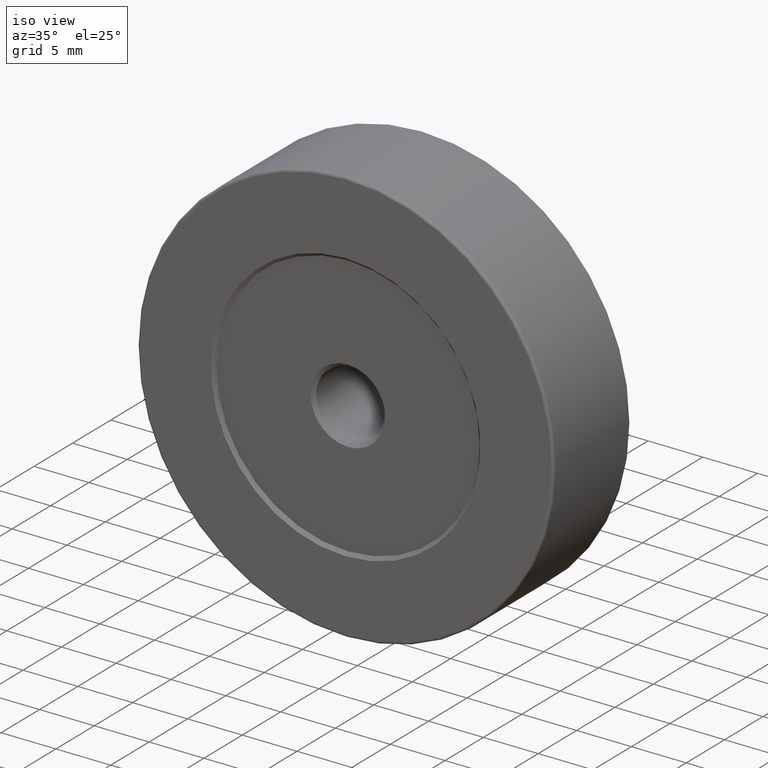
[diagram: clean part render]
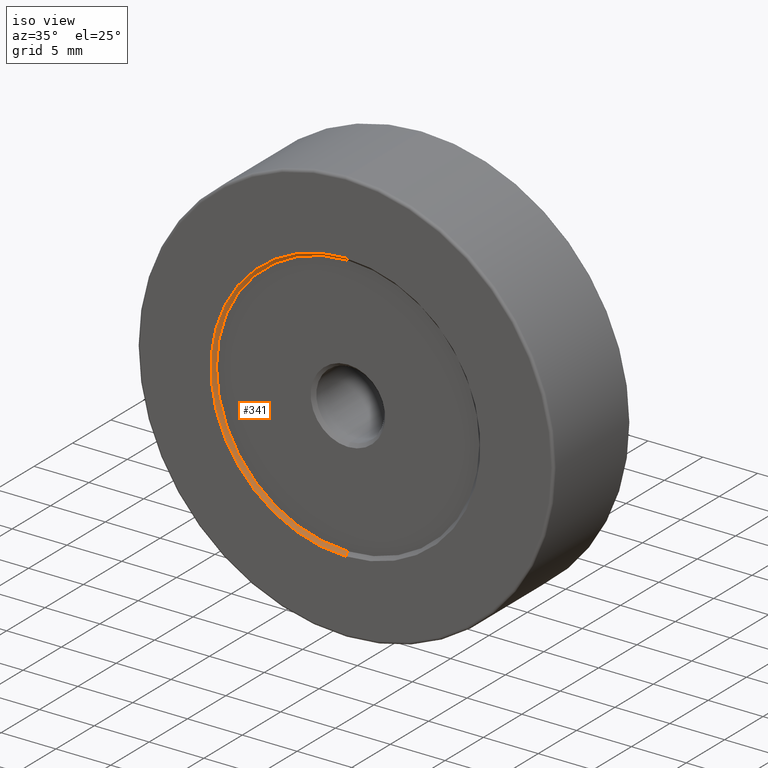
[diagram: same view with one face highlighted and labeled with its STEP entity id]
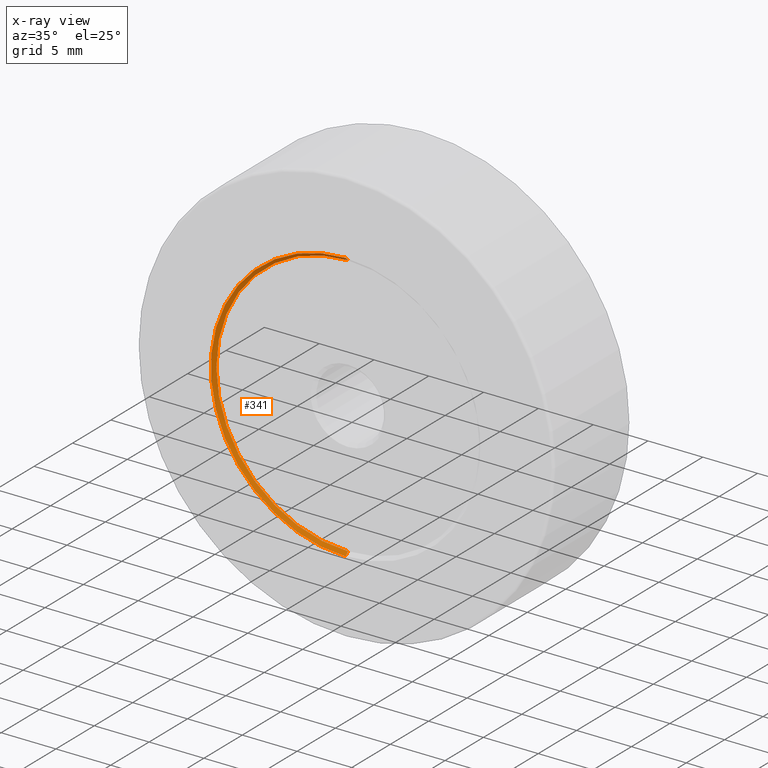
[diagram: x-ray of the same camera — body ghosted, the highlighted face saturated]
A machine part, iso view. The second image highlights one B-rep face of the part: STEP entity #341.
The next image is the same camera in x-ray: the body ghosted, the highlighted face saturated — about 0% of this face is hidden behind the body in this view.
In plain terms, the highlighted conical surface has half-angle 45 deg.
Its self-contained STEP definition (entity closure, byte-faithful):
#15 = DIRECTION ( 'NONE',  ( 0.000000000000000000, 0.000000000000000000, -1.000000000000000000 ) ) ;
#17 = AXIS2_PLACEMENT_3D ( 'NONE', #524, #53, #351 ) ;
#46 = EDGE_CURVE ( 'NONE', #266, #286, #235, .T. ) ;
#51 = VECTOR ( 'NONE', #298, 1000.000000000000000 ) ;
#53 = DIRECTION ( 'NONE',  ( -0.000000000000000000, 1.000000000000000000, -0.000000000000000000 ) ) ;
#60 = AXIS2_PLACEMENT_3D ( 'NONE', #552, #462, #182 ) ;
#68 = EDGE_CURVE ( 'NONE', #526, #204, #223, .T. ) ;
#119 = EDGE_CURVE ( 'NONE', #204, #286, #203, .T. ) ;
#121 = CARTESIAN_POINT ( 'NONE',  ( -7.546808913101046734, -7.593595127302728010, 50.00000000000000000 ) ) ;
#126 = ORIENTED_EDGE ( 'NONE', *, *, #267, .F. ) ;
#179 = DIRECTION ( 'NONE',  ( 0.000000000000000000, -0.7071067811865536790, -0.7071067811865414665 ) ) ;
#182 = DIRECTION ( 'NONE',  ( 0.000000000000000000, 0.000000000000000000, 1.000000000000000000 ) ) ;
#203 = LINE ( 'NONE', #310, #51 ) ;
#204 = VERTEX_POINT ( 'NONE', #121 ) ;
#211 = VECTOR ( 'NONE', #179, 1000.000000000000000 ) ;
#217 = DIRECTION ( 'NONE',  ( -0.000000000000000000, -1.000000000000000000, -0.000000000000000000 ) ) ;
#223 = CIRCLE ( 'NONE', #17, 12.00000000000000355 ) ;
#235 = CIRCLE ( 'NONE', #60, 12.29999999999999183 ) ;
#266 = VERTEX_POINT ( 'NONE', #602 ) ;
#267 = EDGE_CURVE ( 'NONE', #526, #266, #376, .T. ) ;
#271 = CARTESIAN_POINT ( 'NONE',  ( -7.546808913101048510, -7.593595127302728010, 25.99999999999999645 ) ) ;
#286 = VERTEX_POINT ( 'NONE', #498 ) ;
#298 = DIRECTION ( 'NONE',  ( 8.659560562354858902E-17, -0.7071067811865536790, 0.7071067811865414665 ) ) ;
#310 = CARTESIAN_POINT ( 'NONE',  ( -7.546808913101046734, -7.893595127302726944, 50.29999999999999005 ) ) ;
#330 = AXIS2_PLACEMENT_3D ( 'NONE', #395, #217, #15 ) ;
#341 = ADVANCED_FACE ( 'NONE', ( #365 ), #584, .F. ) ;
#349 = ORIENTED_EDGE ( 'NONE', *, *, #119, .T. ) ;
#351 = DIRECTION ( 'NONE',  ( 0.000000000000000000, 0.000000000000000000, 1.000000000000000000 ) ) ;
#355 = ORIENTED_EDGE ( 'NONE', *, *, #46, .F. ) ;
#365 = FACE_OUTER_BOUND ( 'NONE', #580, .T. ) ;
#376 = LINE ( 'NONE', #543, #211 ) ;
#395 = CARTESIAN_POINT ( 'NONE',  ( -7.546808913101048510, -7.893595127302726944, 38.00000000000000000 ) ) ;
#420 = ORIENTED_EDGE ( 'NONE', *, *, #68, .T. ) ;
#462 = DIRECTION ( 'NONE',  ( 0.000000000000000000, 1.000000000000000000, 0.000000000000000000 ) ) ;
#498 = CARTESIAN_POINT ( 'NONE',  ( -7.546808913101046734, -7.893595127302726944, 50.29999999999999005 ) ) ;
#524 = CARTESIAN_POINT ( 'NONE',  ( -7.546808913101048510, -7.593595127302728010, 38.00000000000000000 ) ) ;
#526 = VERTEX_POINT ( 'NONE', #271 ) ;
#543 = CARTESIAN_POINT ( 'NONE',  ( -7.546808913101048510, -7.893595127302726944, 25.70000000000000639 ) ) ;
#552 = CARTESIAN_POINT ( 'NONE',  ( -7.546808913101048510, -7.893595127302726944, 38.00000000000000000 ) ) ;
#580 = EDGE_LOOP ( 'NONE', ( #420, #349, #355, #126 ) ) ;
#584 = CONICAL_SURFACE ( 'NONE', #330, 12.29999999999999183, 0.7853981633974396193 ) ;
#602 = CARTESIAN_POINT ( 'NONE',  ( -7.546808913101048510, -7.893595127302726944, 25.70000000000000639 ) ) ;